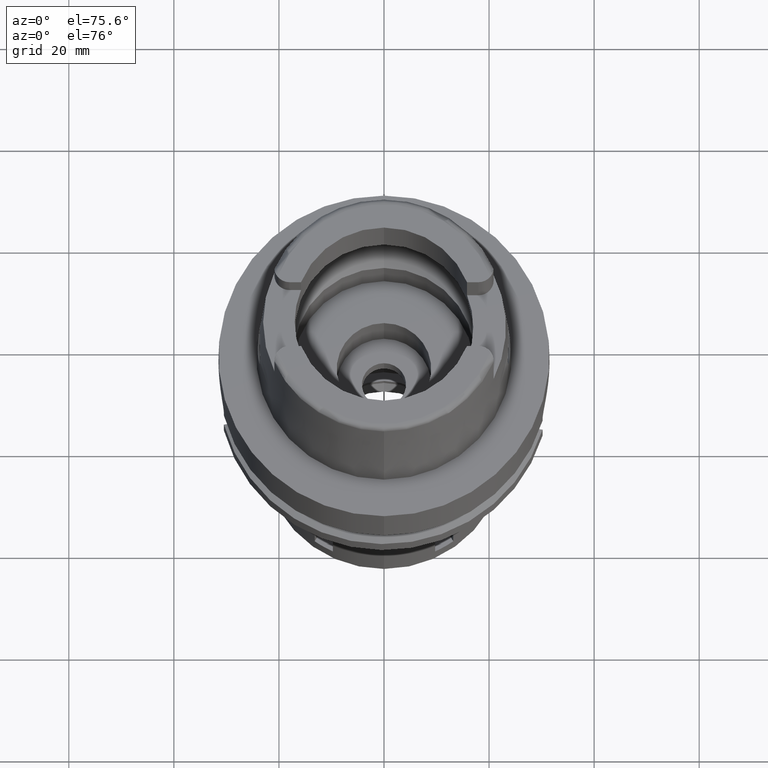
[diagram: clean part render]
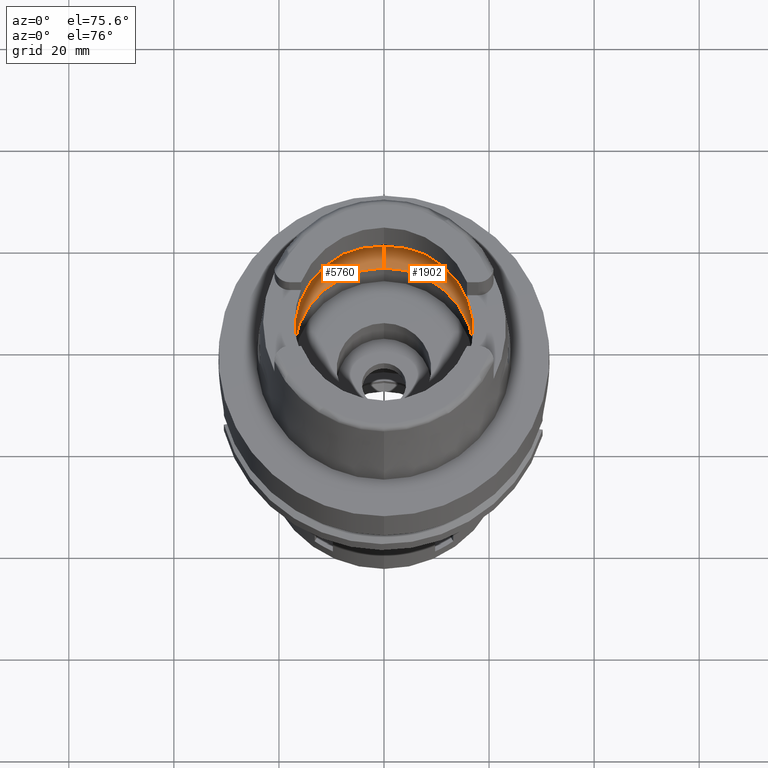
[diagram: same view with one multi-face feature highlighted, each face labeled with its STEP entity id]
A machine part, auxiliary view. The highlighted faces form ONE feature: a constant-radius fillet chain: 2 tangent blend faces with common blend radius 8 mm. The faces share edges in the B-rep.
Their STEP definitions:
[1] entity #5760 (Torus):
#175 = CARTESIAN_POINT ( 'NONE',  ( -19.93655272268687639, 0.9259470818443067408, 5.364515645285496959 ) ) ;
#206 = CARTESIAN_POINT ( 'NONE',  ( -19.88332346670495809, 2.178368557155442531, 5.921389235933154360 ) ) ;
#247 = CARTESIAN_POINT ( 'NONE',  ( -19.92391792695806529, -1.379670552742549017, 5.512962522875360705 ) ) ;
#303 = CARTESIAN_POINT ( 'NONE',  ( -19.93856738032333809, 0.8183990517462441661, 5.338642722792194206 ) ) ;
#309 = VERTEX_POINT ( 'NONE', #3125 ) ;
#329 = VERTEX_POINT ( 'NONE', #4040 ) ;
#332 = ORIENTED_EDGE ( 'NONE', *, *, #4542, .T. ) ;
#358 = EDGE_CURVE ( 'NONE', #866, #4405, #1169, .T. ) ;
#527 = EDGE_CURVE ( 'NONE', #4405, #1830, #3884, .T. ) ;
#602 = VERTEX_POINT ( 'NONE', #1687 ) ;
#866 = VERTEX_POINT ( 'NONE', #3395 ) ;
#975 = EDGE_LOOP ( 'NONE', ( #5496, #5185, #2209, #332, #5074, #2824, #5540 ) ) ;
#1117 = CARTESIAN_POINT ( 'NONE',  ( -19.94340255865083833, 0.4848947565498933909, 5.274596189388688572 ) ) ;
#1169 = B_SPLINE_CURVE_WITH_KNOTS ( 'NONE', 3,
 ( #6045, #1663, #3596, #4992, #2718, #5124, #4579, #5530, #247, #4643, #2168, #4113, #1695, #3625, #4145 ),
 .UNSPECIFIED., .F., .F.,
 ( 4, 2, 2, 1, 1, 1, 2, 2, 4 ),
 ( 0.0000000000000000000, 0.2499999999999957812, 0.3749999999999935607, 0.4374999999999926725, 0.4687499999999921729, 0.4843749999999920064, 0.4921874999999919509, 0.4999999999999920064, 1.000000000000000000 ),
 .UNSPECIFIED. ) ;
#1173 = CIRCLE ( 'NONE', #3499, 7.999999999999992895 ) ;
#1176 = CARTESIAN_POINT ( 'NONE',  ( 0.0000000000000000000, 0.0000000000000000000, 6.186348233825000875 ) ) ;
#1214 = CARTESIAN_POINT ( 'NONE',  ( -19.92591906827003001, 1.321585501799986462, 5.490587994735173893 ) ) ;
#1278 = EDGE_CURVE ( 'NONE', #602, #329, #1173, .T. ) ;
#1377 = AXIS2_PLACEMENT_3D ( 'NONE', #4878, #5358, #1610 ) ;
#1610 = DIRECTION ( 'NONE',  ( 0.0000000000000000000, 1.000000000000000000, 0.0000000000000000000 ) ) ;
#1663 = CARTESIAN_POINT ( 'NONE',  ( -19.86454009060478398, -2.328734643576319652, 6.053875549024845704 ) ) ;
#1687 = CARTESIAN_POINT ( 'NONE',  ( 0.0000000000000000000, -17.25000000000000000, 0.1500000000000999700 ) ) ;
#1695 = CARTESIAN_POINT ( 'NONE',  ( -19.93856751838270824, -0.9457802407118157673, 5.348172554885747054 ) ) ;
#1701 = DIRECTION ( 'NONE',  ( 0.0000000000000000000, -1.000000000000000000, 0.0000000000000000000 ) ) ;
#1728 = DIRECTION ( 'NONE',  ( -0.9922879323327794543, 0.1239542631244973381, 0.0000000000000000000 ) ) ;
#1830 = VERTEX_POINT ( 'NONE', #5998 ) ;
#1954 = CIRCLE ( 'NONE', #4197, 20.00000000000000000 ) ;
#2096 = CARTESIAN_POINT ( 'NONE',  ( -19.92647156474819425, 1.304855687904770578, 5.484336066838738866 ) ) ;
#2129 = CARTESIAN_POINT ( 'NONE',  ( -19.94501428475999916, 0.0000000000000000000, 5.250000000000000000 ) ) ;
#2165 = AXIS2_PLACEMENT_3D ( 'NONE', #6017, #5509, #3108 ) ;
#2168 = CARTESIAN_POINT ( 'NONE',  ( -19.92518025587951058, -1.343452463015866627, 5.498900748199903710 ) ) ;
#2195 = CARTESIAN_POINT ( 'NONE',  ( -19.93292633894125032, 1.081457122330341747, 5.408919853929954336 ) ) ;
#2209 = ORIENTED_EDGE ( 'NONE', *, *, #5533, .F. ) ;
#2254 = VERTEX_POINT ( 'NONE', #3231 ) ;
#2429 = EDGE_CURVE ( 'NONE', #1830, #2254, #5090, .T. ) ;
#2556 = CARTESIAN_POINT ( 'NONE',  ( -19.94501428475999916, 0.0000000000000000000, 5.250000000000000000 ) ) ;
#2591 = DIRECTION ( 'NONE',  ( 0.0000000000000000000, 0.0000000000000000000, -1.000000000000000000 ) ) ;
#2606 = CARTESIAN_POINT ( 'NONE',  ( -19.93096204774570879, 1.157762075072081620, 5.432521242665883321 ) ) ;
#2685 = CARTESIAN_POINT ( 'NONE',  ( 0.0000000000000000000, 0.0000000000000000000, 6.186348233825000875 ) ) ;
#2718 = CARTESIAN_POINT ( 'NONE',  ( -19.90654609288262122, -1.769936306168619966, 5.691842260241858575 ) ) ;
#2720 = DIRECTION ( 'NONE',  ( 0.0000000000000000000, 0.0000000000000000000, -1.000000000000000000 ) ) ;
#2781 = CIRCLE ( 'NONE', #2165, 7.999999999999992895 ) ;
#2824 = ORIENTED_EDGE ( 'NONE', *, *, #527, .F. ) ;
#2843 = DIRECTION ( 'NONE',  ( -1.000000000000000000, 0.0000000000000000000, 0.0000000000000000000 ) ) ;
#3108 = DIRECTION ( 'NONE',  ( 0.0000000000000000000, 0.6562500000000006661, -0.7545435292281016393 ) ) ;
#3125 = CARTESIAN_POINT ( 'NONE',  ( 0.0000000000000000000, 17.25000000000000000, 0.1500000000000999700 ) ) ;
#3150 = CARTESIAN_POINT ( 'NONE',  ( -19.94501428475999916, 0.2479290550739760568, 5.249999999999999112 ) ) ;
#3231 = CARTESIAN_POINT ( 'NONE',  ( 0.0000000000000000000, 20.00000000000000000, 6.186348233825000875 ) ) ;
#3317 = EDGE_CURVE ( 'NONE', #329, #866, #1954, .T. ) ;
#3395 = CARTESIAN_POINT ( 'NONE',  ( -19.84575864665999845, -2.479085262491000030, 6.186348233825000875 ) ) ;
#3496 = AXIS2_PLACEMENT_3D ( 'NONE', #1176, #4126, #3574 ) ;
#3499 = AXIS2_PLACEMENT_3D ( 'NONE', #5249, #2843, #4771 ) ;
#3574 = DIRECTION ( 'NONE',  ( 0.0000000000000000000, 1.000000000000000000, 0.0000000000000000000 ) ) ;
#3596 = CARTESIAN_POINT ( 'NONE',  ( -19.88059042415784816, -2.158397635262351066, 5.925190505596781065 ) ) ;
#3625 = CARTESIAN_POINT ( 'NONE',  ( -19.94501428475999916, -0.4959087842382808309, 5.249999999999998224 ) ) ;
#3884 = B_SPLINE_CURVE_WITH_KNOTS ( 'NONE', 3,
 ( #2129, #3150, #1117, #303, #175, #2195, #2606, #4068, #5489, #2096, #5081, #1214, #4539, #206, #5997 ),
 .UNSPECIFIED., .F., .F.,
 ( 4, 2, 2, 1, 1, 1, 2, 2, 4 ),
 ( 0.0000000000000000000, 0.2499999999999942268, 0.3749999999999913958, 0.4374999999999900635, 0.4687499999999894529, 0.4843749999999892863, 0.4921874999999892308, 0.4999999999999892308, 1.000000000000000000 ),
 .UNSPECIFIED. ) ;
#4040 = CARTESIAN_POINT ( 'NONE',  ( 0.0000000000000000000, -20.00000000000000000, 6.186348233825000875 ) ) ;
#4068 = CARTESIAN_POINT ( 'NONE',  ( -19.92840595086944688, 1.244192535815689116, 5.462252019518305524 ) ) ;
#4113 = CARTESIAN_POINT ( 'NONE',  ( -19.92547252417883641, -1.334867513091082314, 5.495621353218018257 ) ) ;
#4126 = DIRECTION ( 'NONE',  ( 0.0000000000000000000, 0.0000000000000000000, 1.000000000000000000 ) ) ;
#4145 = CARTESIAN_POINT ( 'NONE',  ( -19.94501428475999916, 0.0000000000000000000, 5.250000000000000000 ) ) ;
#4197 = AXIS2_PLACEMENT_3D ( 'NONE', #2685, #2591, #1701 ) ;
#4405 = VERTEX_POINT ( 'NONE', #2556 ) ;
#4539 = CARTESIAN_POINT ( 'NONE',  ( -19.90996177496829489, 1.795767083468379210, 5.670284047755099088 ) ) ;
#4542 = EDGE_CURVE ( 'NONE', #309, #2254, #2781, .T. ) ;
#4579 = CARTESIAN_POINT ( 'NONE',  ( -19.91820167814924503, -1.528670811425639542, 5.574773783465068355 ) ) ;
#4643 = CARTESIAN_POINT ( 'NONE',  ( -19.92467852483092017, -1.357963622241911139, 5.504503570019525505 ) ) ;
#4771 = DIRECTION ( 'NONE',  ( 0.0000000000000000000, -0.6562500000000006661, -0.7545435292281016393 ) ) ;
#4878 = CARTESIAN_POINT ( 'NONE',  ( 0.0000000000000000000, 0.0000000000000000000, 0.1500000000000999700 ) ) ;
#4980 = AXIS2_PLACEMENT_3D ( 'NONE', #6076, #2720, #1728 ) ;
#4992 = CARTESIAN_POINT ( 'NONE',  ( -19.90056925889987127, -1.871018165099524122, 5.748162139564427342 ) ) ;
#5016 = CIRCLE ( 'NONE', #1377, 17.25000000000000000 ) ;
#5074 = ORIENTED_EDGE ( 'NONE', *, *, #2429, .F. ) ;
#5081 = CARTESIAN_POINT ( 'NONE',  ( -19.92607492902601507, 1.316891584246879576, 5.488826718527257675 ) ) ;
#5090 = CIRCLE ( 'NONE', #4980, 20.00000000000001421 ) ;
#5124 = CARTESIAN_POINT ( 'NONE',  ( -19.91448717745985775, -1.610408095139941542, 5.612876396282293179 ) ) ;
#5167 = FACE_OUTER_BOUND ( 'NONE', #975, .T. ) ;
#5185 = ORIENTED_EDGE ( 'NONE', *, *, #1278, .F. ) ;
#5249 = CARTESIAN_POINT ( 'NONE',  ( 0.0000000000000000000, -12.00000000000000000, 6.186348233825000875 ) ) ;
#5319 = TOROIDAL_SURFACE ( 'NONE', #3496, 12.00000000000000000, 8.000000000000000000 ) ;
#5358 = DIRECTION ( 'NONE',  ( 0.0000000000000000000, 0.0000000000000000000, 1.000000000000000000 ) ) ;
#5489 = CARTESIAN_POINT ( 'NONE',  ( -19.92706179647762355, 1.286754988675302247, 5.477635449957110048 ) ) ;
#5496 = ORIENTED_EDGE ( 'NONE', *, *, #3317, .F. ) ;
#5509 = DIRECTION ( 'NONE',  ( 1.000000000000000000, 0.0000000000000000000, 0.0000000000000000000 ) ) ;
#5530 = CARTESIAN_POINT ( 'NONE',  ( -19.92208718948823076, -1.429900174883156350, 5.533077591732342704 ) ) ;
#5533 = EDGE_CURVE ( 'NONE', #309, #602, #5016, .T. ) ;
#5540 = ORIENTED_EDGE ( 'NONE', *, *, #358, .F. ) ;
#5760 = ADVANCED_FACE ( 'NONE', ( #5167 ), #5319, .F. ) ;
#5997 = CARTESIAN_POINT ( 'NONE',  ( -19.84575864665999845, 2.479085262489999941, 6.186348233825000875 ) ) ;
#5998 = CARTESIAN_POINT ( 'NONE',  ( -19.84575864665999845, 2.479085262489999941, 6.186348233825000875 ) ) ;
#6017 = CARTESIAN_POINT ( 'NONE',  ( 0.0000000000000000000, 12.00000000000000000, 6.186348233825000875 ) ) ;
#6045 = CARTESIAN_POINT ( 'NONE',  ( -19.84575864665999845, -2.479085262491000030, 6.186348233825000875 ) ) ;
#6076 = CARTESIAN_POINT ( 'NONE',  ( 0.0000000000000000000, 0.0000000000000000000, 6.186348233825000875 ) ) ;
[2] entity #1902 (Torus):
#63 = CARTESIAN_POINT ( 'NONE',  ( 19.86454016619522989, 2.328734038445912979, 6.053875015849456531 ) ) ;
#90 = CARTESIAN_POINT ( 'NONE',  ( 19.94501428475999916, 0.0000000000000000000, 5.250000000000000000 ) ) ;
#197 = CARTESIAN_POINT ( 'NONE',  ( 19.84575864665999845, 2.479085262491000030, 6.186348233825000875 ) ) ;
#262 = DIRECTION ( 'NONE',  ( 0.0000000000000000000, 0.0000000000000000000, -1.000000000000000000 ) ) ;
#274 = CARTESIAN_POINT ( 'NONE',  ( 0.0000000000000000000, 0.0000000000000000000, 6.186348233825000875 ) ) ;
#309 = VERTEX_POINT ( 'NONE', #3125 ) ;
#321 = EDGE_LOOP ( 'NONE', ( #1440, #6253, #3193, #4178, #2567, #6117, #3361 ) ) ;
#329 = VERTEX_POINT ( 'NONE', #4040 ) ;
#374 = CARTESIAN_POINT ( 'NONE',  ( 19.94501428475999916, 0.0000000000000000000, 5.250000000000000000 ) ) ;
#477 = CARTESIAN_POINT ( 'NONE',  ( 19.90056942649606597, 1.871016442818389525, 5.748161141865908874 ) ) ;
#502 = CARTESIAN_POINT ( 'NONE',  ( 19.92208736014775994, 1.429898011590186924, 5.533076699460339754 ) ) ;
#602 = VERTEX_POINT ( 'NONE', #1687 ) ;
#782 = EDGE_CURVE ( 'NONE', #6010, #4544, #4412, .T. ) ;
#983 = CARTESIAN_POINT ( 'NONE',  ( 19.94501428475999916, 0.0000000000000000000, 5.250000000000000000 ) ) ;
#1173 = CIRCLE ( 'NONE', #3499, 7.999999999999992895 ) ;
#1278 = EDGE_CURVE ( 'NONE', #602, #329, #1173, .T. ) ;
#1393 = EDGE_CURVE ( 'NONE', #602, #309, #5429, .T. ) ;
#1440 = ORIENTED_EDGE ( 'NONE', *, *, #3545, .F. ) ;
#1483 = CARTESIAN_POINT ( 'NONE',  ( 0.0000000000000000000, 0.0000000000000000000, 0.1500000000000999700 ) ) ;
#1506 = CARTESIAN_POINT ( 'NONE',  ( 19.91448735469504427, 1.610406046188481932, 5.612875421313382240 ) ) ;
#1510 = B_SPLINE_CURVE_WITH_KNOTS ( 'NONE', 3,
 ( #2959, #63, #3413, #477, #3922, #1506, #4833, #502, #4362, #5755, #3829, #3855, #2453, #4894, #90 ),
 .UNSPECIFIED., .F., .F.,
 ( 4, 2, 2, 1, 1, 1, 2, 2, 4 ),
 ( 0.0000000000000000000, 0.2500000000000033862, 0.3750000000000049405, 0.4375000000000056621, 0.4687500000000057176, 0.4843750000000056621, 0.4921875000000054956, 0.5000000000000053291, 1.000000000000000000 ),
 .UNSPECIFIED. ) ;
#1559 = AXIS2_PLACEMENT_3D ( 'NONE', #5549, #262, #2601 ) ;
#1655 = CIRCLE ( 'NONE', #1559, 20.00000000000000000 ) ;
#1687 = CARTESIAN_POINT ( 'NONE',  ( 0.0000000000000000000, -17.25000000000000000, 0.1500000000000999700 ) ) ;
#1885 = CARTESIAN_POINT ( 'NONE',  ( 19.90996156375606674, -1.795769246985481571, 5.670285195732481576 ) ) ;
#1902 = ADVANCED_FACE ( 'NONE', ( #5655 ), #4975, .F. ) ;
#2165 = AXIS2_PLACEMENT_3D ( 'NONE', #6017, #5509, #3108 ) ;
#2254 = VERTEX_POINT ( 'NONE', #3231 ) ;
#2350 = CARTESIAN_POINT ( 'NONE',  ( 19.92706164205126385, -1.286756906106516940, 5.477636149942417987 ) ) ;
#2395 = EDGE_CURVE ( 'NONE', #4544, #329, #5788, .T. ) ;
#2451 = AXIS2_PLACEMENT_3D ( 'NONE', #3600, #5532, #4582 ) ;
#2453 = CARTESIAN_POINT ( 'NONE',  ( 19.93856757259323231, 0.9457801821284733679, 5.348172806034195759 ) ) ;
#2567 = ORIENTED_EDGE ( 'NONE', *, *, #1278, .T. ) ;
#2601 = DIRECTION ( 'NONE',  ( 0.0000000000000000000, 1.000000000000000000, 0.0000000000000000000 ) ) ;
#2702 = AXIS2_PLACEMENT_3D ( 'NONE', #1483, #3352, #4364 ) ;
#2740 = DIRECTION ( 'NONE',  ( 0.0000000000000000000, 1.000000000000000000, 0.0000000000000000000 ) ) ;
#2772 = DIRECTION ( 'NONE',  ( 0.0000000000000000000, 0.0000000000000000000, 1.000000000000000000 ) ) ;
#2781 = CIRCLE ( 'NONE', #2165, 7.999999999999992895 ) ;
#2832 = CARTESIAN_POINT ( 'NONE',  ( 19.93096192686909518, -1.157763334012747114, 5.432521644578194753 ) ) ;
#2843 = DIRECTION ( 'NONE',  ( -1.000000000000000000, 0.0000000000000000000, 0.0000000000000000000 ) ) ;
#2959 = CARTESIAN_POINT ( 'NONE',  ( 19.84575864665999845, 2.479085262491000030, 6.186348233825000875 ) ) ;
#3108 = DIRECTION ( 'NONE',  ( 0.0000000000000000000, 0.6562500000000006661, -0.7545435292281016393 ) ) ;
#3125 = CARTESIAN_POINT ( 'NONE',  ( 0.0000000000000000000, 17.25000000000000000, 0.1500000000000999700 ) ) ;
#3193 = ORIENTED_EDGE ( 'NONE', *, *, #4542, .F. ) ;
#3231 = CARTESIAN_POINT ( 'NONE',  ( 0.0000000000000000000, 20.00000000000000000, 6.186348233825000875 ) ) ;
#3340 = CARTESIAN_POINT ( 'NONE',  ( 19.94501428475999560, -0.2479285940720863946, 5.249999999999998224 ) ) ;
#3352 = DIRECTION ( 'NONE',  ( 0.0000000000000000000, 0.0000000000000000000, 1.000000000000000000 ) ) ;
#3361 = ORIENTED_EDGE ( 'NONE', *, *, #782, .F. ) ;
#3413 = CARTESIAN_POINT ( 'NONE',  ( 19.88059055109615159, 2.158396495719459462, 5.925189677144884648 ) ) ;
#3499 = AXIS2_PLACEMENT_3D ( 'NONE', #5249, #2843, #4771 ) ;
#3545 = EDGE_CURVE ( 'NONE', #5704, #6010, #1510, .T. ) ;
#3600 = CARTESIAN_POINT ( 'NONE',  ( 0.0000000000000000000, 0.0000000000000000000, 6.186348233825000875 ) ) ;
#3819 = CARTESIAN_POINT ( 'NONE',  ( 19.88332331094866490, -2.178369804041490276, 5.921390334554123669 ) ) ;
#3829 = CARTESIAN_POINT ( 'NONE',  ( 19.92518041982365418, 1.343450277255565872, 5.498899909475031045 ) ) ;
#3855 = CARTESIAN_POINT ( 'NONE',  ( 19.92547268850448816, 1.334865291962832767, 5.495620507227335416 ) ) ;
#3922 = CARTESIAN_POINT ( 'NONE',  ( 19.90654626797081761, 1.769934426146181128, 5.691841251131339874 ) ) ;
#4040 = CARTESIAN_POINT ( 'NONE',  ( 0.0000000000000000000, -20.00000000000000000, 6.186348233825000875 ) ) ;
#4142 = EDGE_CURVE ( 'NONE', #2254, #5704, #1655, .T. ) ;
#4172 = CARTESIAN_POINT ( 'NONE',  ( 19.93856732486741024, -0.8183991276165779594, 5.338642733814154440 ) ) ;
#4178 = ORIENTED_EDGE ( 'NONE', *, *, #1393, .F. ) ;
#4292 = CARTESIAN_POINT ( 'NONE',  ( 19.92647140524467630, -1.304857706103421222, 5.484336815834931045 ) ) ;
#4362 = CARTESIAN_POINT ( 'NONE',  ( 19.92391809393505397, 1.379668374353000937, 5.512961660982391265 ) ) ;
#4364 = DIRECTION ( 'NONE',  ( 0.0000000000000000000, -1.000000000000000000, 0.0000000000000000000 ) ) ;
#4412 = B_SPLINE_CURVE_WITH_KNOTS ( 'NONE', 3,
 ( #374, #3340, #4731, #4172, #5714, #5239, #2832, #4761, #2350, #4292, #5748, #6225, #1885, #3819, #5268 ),
 .UNSPECIFIED., .F., .F.,
 ( 4, 2, 2, 1, 1, 1, 2, 2, 4 ),
 ( 0.0000000000000000000, 0.2499999999999947820, 0.3749999999999921174, 0.4374999999999906186, 0.4687499999999900080, 0.4843749999999897859, 0.4921874999999896194, 0.4999999999999894529, 1.000000000000000000 ),
 .UNSPECIFIED. ) ;
#4529 = CARTESIAN_POINT ( 'NONE',  ( 19.84575864665999845, -2.479085262491000030, 6.186348233825000875 ) ) ;
#4542 = EDGE_CURVE ( 'NONE', #309, #2254, #2781, .T. ) ;
#4544 = VERTEX_POINT ( 'NONE', #4529 ) ;
#4582 = DIRECTION ( 'NONE',  ( 0.9922879323327794543, -0.1239542631244973381, 0.0000000000000000000 ) ) ;
#4676 = AXIS2_PLACEMENT_3D ( 'NONE', #274, #2772, #2740 ) ;
#4731 = CARTESIAN_POINT ( 'NONE',  ( 19.94340254478684926, -0.4848942647184917298, 5.274596102033371814 ) ) ;
#4761 = CARTESIAN_POINT ( 'NONE',  ( 19.92840580800542583, -1.244194224745405863, 5.462252611686061243 ) ) ;
#4771 = DIRECTION ( 'NONE',  ( 0.0000000000000000000, -0.6562500000000006661, -0.7545435292281016393 ) ) ;
#4833 = CARTESIAN_POINT ( 'NONE',  ( 19.91820185418519884, 1.528668694906667236, 5.574772838317966439 ) ) ;
#4894 = CARTESIAN_POINT ( 'NONE',  ( 19.94501428475999560, 0.4959095983523816309, 5.249999999999999112 ) ) ;
#4975 = TOROIDAL_SURFACE ( 'NONE', #4676, 12.00000000000000000, 8.000000000000000000 ) ;
#5239 = CARTESIAN_POINT ( 'NONE',  ( 19.93292623496137494, -1.081458060797942489, 5.408920133523466234 ) ) ;
#5249 = CARTESIAN_POINT ( 'NONE',  ( 0.0000000000000000000, -12.00000000000000000, 6.186348233825000875 ) ) ;
#5268 = CARTESIAN_POINT ( 'NONE',  ( 19.84575864665999845, -2.479085262491000030, 6.186348233825000875 ) ) ;
#5429 = CIRCLE ( 'NONE', #2702, 17.25000000000000000 ) ;
#5509 = DIRECTION ( 'NONE',  ( 1.000000000000000000, 0.0000000000000000000, 0.0000000000000000000 ) ) ;
#5532 = DIRECTION ( 'NONE',  ( 0.0000000000000000000, 0.0000000000000000000, -1.000000000000000000 ) ) ;
#5549 = CARTESIAN_POINT ( 'NONE',  ( 0.0000000000000000000, 0.0000000000000000000, 6.186348233825000875 ) ) ;
#5655 = FACE_OUTER_BOUND ( 'NONE', #321, .T. ) ;
#5704 = VERTEX_POINT ( 'NONE', #197 ) ;
#5714 = CARTESIAN_POINT ( 'NONE',  ( 19.93655264990096398, -0.9259474478404787767, 5.364515726543497287 ) ) ;
#5748 = CARTESIAN_POINT ( 'NONE',  ( 19.92607476611066630, -1.316893670248203696, 5.488827500829480677 ) ) ;
#5755 = CARTESIAN_POINT ( 'NONE',  ( 19.92467869001661995, 1.357961439187409525, 5.504502721927527986 ) ) ;
#5788 = CIRCLE ( 'NONE', #2451, 20.00000000000001421 ) ;
#6010 = VERTEX_POINT ( 'NONE', #983 ) ;
#6017 = CARTESIAN_POINT ( 'NONE',  ( 0.0000000000000000000, 12.00000000000000000, 6.186348233825000875 ) ) ;
#6117 = ORIENTED_EDGE ( 'NONE', *, *, #2395, .F. ) ;
#6225 = CARTESIAN_POINT ( 'NONE',  ( 19.92591890260291621, -1.321587656400195598, 5.490588806117743026 ) ) ;
#6253 = ORIENTED_EDGE ( 'NONE', *, *, #4142, .F. ) ;